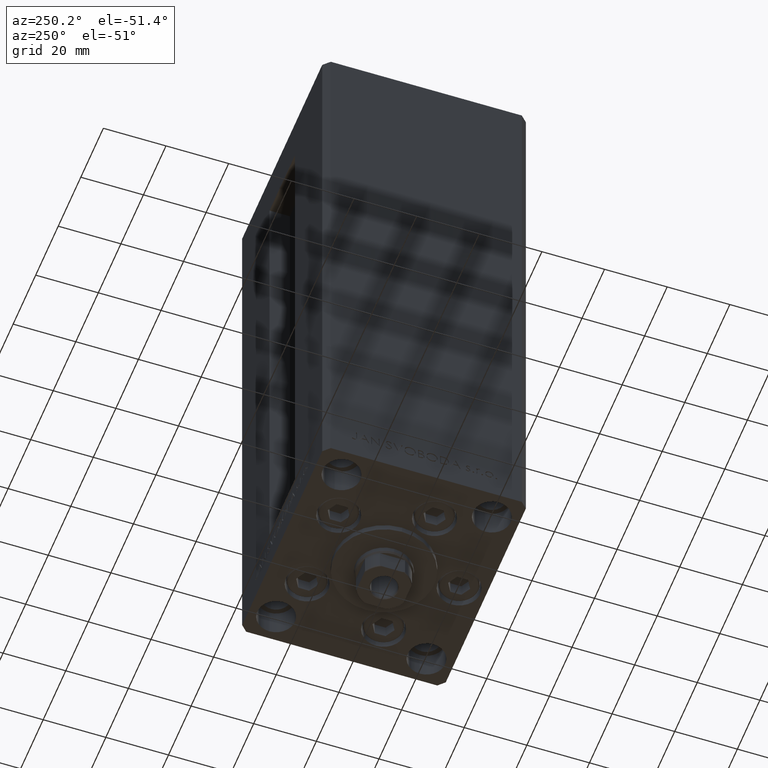
[diagram: clean part render]
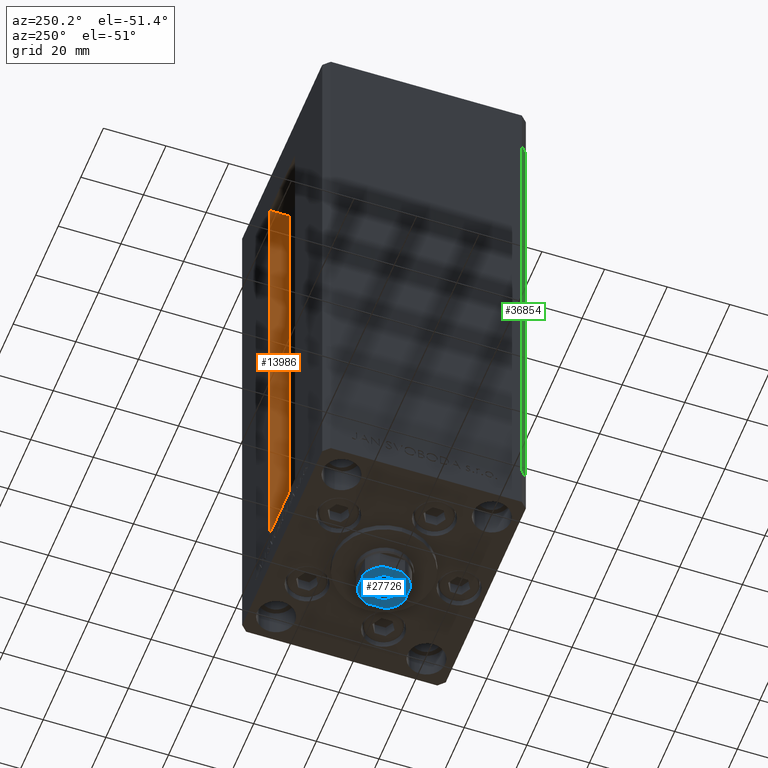
[diagram: same view with three faces highlighted in distinct colors, each labeled with its STEP entity id]
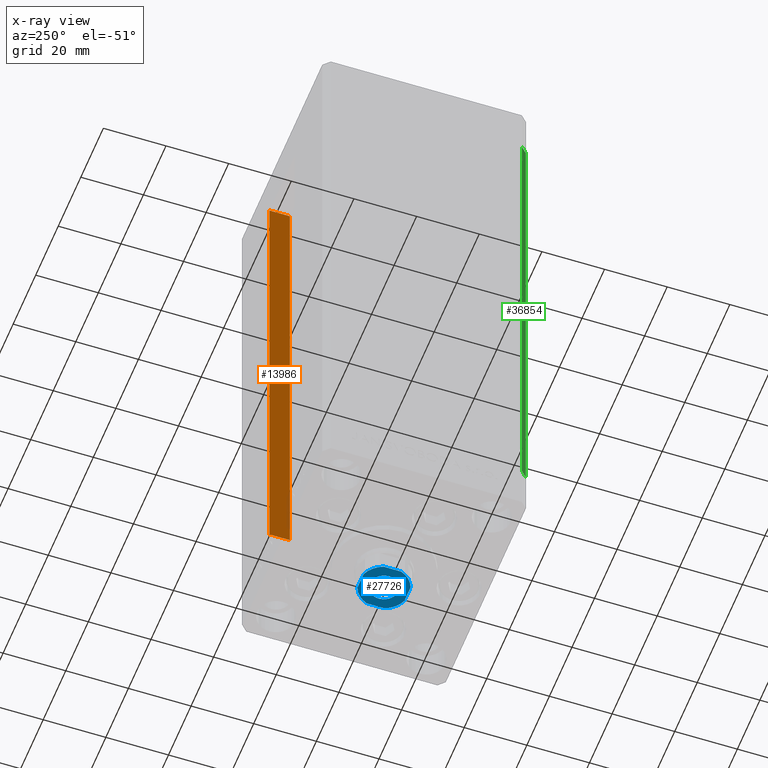
[diagram: x-ray of the same camera — body ghosted, the three highlighted faces saturated]
A machine part, auxiliary view with three faces highlighted in distinct colors.
The next image is the same camera in x-ray (body ghosted, the three faces saturated) — at least one of them is partly hidden behind the body in this view.
Their STEP definitions:

[orange] entity #13986 — the highlighted planar face has unit normal (1, 0, 0).
#1463 = CARTESIAN_POINT ( 'NONE',  ( 11.25000000000000178, 25.99999999999999289, 0.000000000000000000 ) ) ;
#2507 = ORIENTED_EDGE ( 'NONE', *, *, #34275, .F. ) ;
#3794 = AXIS2_PLACEMENT_3D ( 'NONE', #8987, #42883, #5533 ) ;
#4972 = CARTESIAN_POINT ( 'NONE',  ( 11.25000000000000178, 32.49999999999999289, 0.000000000000000000 ) ) ;
#5533 = DIRECTION ( 'NONE',  ( 0.000000000000000000, 0.000000000000000000, -1.000000000000000000 ) ) ;
#6016 = FACE_OUTER_BOUND ( 'NONE', #42939, .T. ) ;
#8684 = LINE ( 'NONE', #16348, #17759 ) ;
#8987 = CARTESIAN_POINT ( 'NONE',  ( 11.25000000000000178, 25.99999999999999289, 0.000000000000000000 ) ) ;
#9022 = VECTOR ( 'NONE', #26751, 1000.000000000000000 ) ;
#9454 = CARTESIAN_POINT ( 'NONE',  ( 11.24999999999999467, 32.49999999999999289, 156.0000000000000000 ) ) ;
#10745 = VECTOR ( 'NONE', #16542, 1000.000000000000000 ) ;
#12645 = CARTESIAN_POINT ( 'NONE',  ( 11.25000000000000178, 32.49999999999999289, 0.000000000000000000 ) ) ;
#12868 = DIRECTION ( 'NONE',  ( -0.000000000000000000, -1.000000000000000000, 0.000000000000000000 ) ) ;
#13986 = ADVANCED_FACE ( 'NONE', ( #6016 ), #20858, .F. ) ;
#16348 = CARTESIAN_POINT ( 'NONE',  ( 11.25000000000000178, 0.000000000000000000, 156.0000000000000000 ) ) ;
#16542 = DIRECTION ( 'NONE',  ( -0.000000000000000000, -0.000000000000000000, 1.000000000000000000 ) ) ;
#17143 = DIRECTION ( 'NONE',  ( 0.000000000000000000, 1.000000000000000000, 0.000000000000000000 ) ) ;
#17406 = ORIENTED_EDGE ( 'NONE', *, *, #43816, .T. ) ;
#17759 = VECTOR ( 'NONE', #12868, 1000.000000000000000 ) ;
#18144 = CARTESIAN_POINT ( 'NONE',  ( 11.25000000000000178, 25.99999999999999289, 0.000000000000000000 ) ) ;
#19273 = ORIENTED_EDGE ( 'NONE', *, *, #35111, .F. ) ;
#20251 = LINE ( 'NONE', #1463, #10745 ) ;
#20858 = PLANE ( 'NONE',  #3794 ) ;
#21662 = VERTEX_POINT ( 'NONE', #37900 ) ;
#22761 = EDGE_CURVE ( 'NONE', #38744, #41622, #44606, .T. ) ;
#23570 = VERTEX_POINT ( 'NONE', #9454 ) ;
#25819 = ORIENTED_EDGE ( 'NONE', *, *, #22761, .F. ) ;
#26751 = DIRECTION ( 'NONE',  ( -0.000000000000000000, -0.000000000000000000, 1.000000000000000000 ) ) ;
#30032 = CARTESIAN_POINT ( 'NONE',  ( 11.25000000000000178, 25.99999999999999289, 0.000000000000000000 ) ) ;
#34275 = EDGE_CURVE ( 'NONE', #41622, #23570, #38627, .T. ) ;
#35111 = EDGE_CURVE ( 'NONE', #23570, #21662, #8684, .T. ) ;
#37900 = CARTESIAN_POINT ( 'NONE',  ( 11.25000000000000178, 25.99999999999999289, 156.0000000000000000 ) ) ;
#38039 = VECTOR ( 'NONE', #17143, 1000.000000000000000 ) ;
#38627 = LINE ( 'NONE', #4972, #9022 ) ;
#38744 = VERTEX_POINT ( 'NONE', #30032 ) ;
#41622 = VERTEX_POINT ( 'NONE', #12645 ) ;
#42883 = DIRECTION ( 'NONE',  ( 1.000000000000000000, -0.000000000000000000, 0.000000000000000000 ) ) ;
#42939 = EDGE_LOOP ( 'NONE', ( #2507, #25819, #17406, #19273 ) ) ;
#43816 = EDGE_CURVE ( 'NONE', #38744, #21662, #20251, .T. ) ;
#44606 = LINE ( 'NONE', #18144, #38039 ) ;

[blue] entity #27726 — the highlighted planar face has unit normal (0, 0, -1).
#324 = ORIENTED_EDGE ( 'NONE', *, *, #45674, .T. ) ;
#379 = VERTEX_POINT ( 'NONE', #30710 ) ;
#713 = EDGE_CURVE ( 'NONE', #7906, #27357, #31229, .T. ) ;
#1664 = CARTESIAN_POINT ( 'NONE',  ( 0.000000000000000000, 0.000000000000000000, 168.0000000000000000 ) ) ;
#2004 = LINE ( 'NONE', #43312, #47153 ) ;
#2095 = CARTESIAN_POINT ( 'NONE',  ( 0.000000000000000000, 0.000000000000000000, 168.0000000000000000 ) ) ;
#2197 = ORIENTED_EDGE ( 'NONE', *, *, #713, .T. ) ;
#4750 = DIRECTION ( 'NONE',  ( -1.000000000000000000, -5.782411586589357392E-17, -0.000000000000000000 ) ) ;
#4983 = AXIS2_PLACEMENT_3D ( 'NONE', #39638, #43092, #39885 ) ;
#5204 = DIRECTION ( 'NONE',  ( 1.000000000000000000, 0.000000000000000000, 0.000000000000000000 ) ) ;
#5930 = CARTESIAN_POINT ( 'NONE',  ( 7.500000000000000888, 2.783882181415007206, 168.0000000000000000 ) ) ;
#7815 = CIRCLE ( 'NONE', #22031, 4.550000000000012257 ) ;
#7906 = VERTEX_POINT ( 'NONE', #14012 ) ;
#8404 = ORIENTED_EDGE ( 'NONE', *, *, #43147, .T. ) ;
#8625 = CARTESIAN_POINT ( 'NONE',  ( -7.499999999999998224, 7.499999999999999112, 168.0000000000000000 ) ) ;
#9267 = CARTESIAN_POINT ( 'NONE',  ( -7.499999999999998224, 2.783882181415015644, 168.0000000000000000 ) ) ;
#9825 = CARTESIAN_POINT ( 'NONE',  ( 4.550000000000012257, 0.000000000000000000, 168.0000000000000000 ) ) ;
#10028 = EDGE_CURVE ( 'NONE', #21853, #15069, #29854, .T. ) ;
#11124 = CARTESIAN_POINT ( 'NONE',  ( -7.499999999999998224, -2.783882181415016088, 168.0000000000000000 ) ) ;
#11646 = DIRECTION ( 'NONE',  ( -0.000000000000000000, 0.000000000000000000, 1.000000000000000000 ) ) ;
#11683 = AXIS2_PLACEMENT_3D ( 'NONE', #1664, #16745, #13270 ) ;
#12481 = DIRECTION ( 'NONE',  ( 0.000000000000000000, -0.000000000000000000, -1.000000000000000000 ) ) ;
#12727 = VECTOR ( 'NONE', #36432, 1000.000000000000000 ) ;
#12824 = CARTESIAN_POINT ( 'NONE',  ( 7.500000000000001776, 7.500000000000000000, 168.0000000000000000 ) ) ;
#13206 = DIRECTION ( 'NONE',  ( 1.000000000000000000, 0.000000000000000000, 0.000000000000000000 ) ) ;
#13270 = DIRECTION ( 'NONE',  ( 1.000000000000000000, 0.000000000000000000, 0.000000000000000000 ) ) ;
#13366 = EDGE_CURVE ( 'NONE', #28969, #34473, #17276, .T. ) ;
#13404 = CARTESIAN_POINT ( 'NONE',  ( -7.499999999999997335, -7.500000000000000888, 168.0000000000000000 ) ) ;
#13981 = ORIENTED_EDGE ( 'NONE', *, *, #45842, .T. ) ;
#14012 = CARTESIAN_POINT ( 'NONE',  ( -2.783882181415013868, 7.499999999999999112, 168.0000000000000000 ) ) ;
#14053 = CARTESIAN_POINT ( 'NONE',  ( 0.000000000000000000, 0.000000000000000000, 168.0000000000000000 ) ) ;
#15069 = VERTEX_POINT ( 'NONE', #17543 ) ;
#15443 = EDGE_CURVE ( 'NONE', #39572, #379, #33047, .T. ) ;
#15737 = EDGE_CURVE ( 'NONE', #33720, #36779, #7815, .T. ) ;
#16745 = DIRECTION ( 'NONE',  ( -0.000000000000000000, 0.000000000000000000, 1.000000000000000000 ) ) ;
#17276 = CIRCLE ( 'NONE', #21248, 8.000000000000000000 ) ;
#17543 = CARTESIAN_POINT ( 'NONE',  ( -2.783882181415010315, -7.500000000000000888, 168.0000000000000000 ) ) ;
#17763 = DIRECTION ( 'NONE',  ( -0.000000000000000000, 0.000000000000000000, 1.000000000000000000 ) ) ;
#18214 = CARTESIAN_POINT ( 'NONE',  ( 0.000000000000000000, 0.000000000000000000, 168.0000000000000000 ) ) ;
#20261 = LINE ( 'NONE', #12824, #28938 ) ;
#21001 = DIRECTION ( 'NONE',  ( 1.156482317317871478E-16, 1.000000000000000000, -0.000000000000000000 ) ) ;
#21248 = AXIS2_PLACEMENT_3D ( 'NONE', #14053, #17763, #28411 ) ;
#21853 = VERTEX_POINT ( 'NONE', #11124 ) ;
#22031 = AXIS2_PLACEMENT_3D ( 'NONE', #2095, #12481, #13206 ) ;
#22063 = ORIENTED_EDGE ( 'NONE', *, *, #10028, .T. ) ;
#22176 = DIRECTION ( 'NONE',  ( -0.000000000000000000, 0.000000000000000000, 1.000000000000000000 ) ) ;
#23663 = EDGE_CURVE ( 'NONE', #15069, #39572, #47320, .T. ) ;
#23814 = PLANE ( 'NONE',  #4983 ) ;
#24533 = ORIENTED_EDGE ( 'NONE', *, *, #15443, .T. ) ;
#25059 = CARTESIAN_POINT ( 'NONE',  ( 0.000000000000000000, 0.000000000000000000, 168.0000000000000000 ) ) ;
#25266 = ORIENTED_EDGE ( 'NONE', *, *, #15737, .T. ) ;
#25795 = AXIS2_PLACEMENT_3D ( 'NONE', #25059, #36699, #41137 ) ;
#27357 = VERTEX_POINT ( 'NONE', #9267 ) ;
#27607 = CARTESIAN_POINT ( 'NONE',  ( 2.783882181415008539, -7.500000000000000888, 168.0000000000000000 ) ) ;
#27726 = ADVANCED_FACE ( 'NONE', ( #32224, #35197 ), #23814, .T. ) ;
#28408 = LINE ( 'NONE', #8625, #35989 ) ;
#28411 = DIRECTION ( 'NONE',  ( 1.000000000000000000, 0.000000000000000000, 0.000000000000000000 ) ) ;
#28938 = VECTOR ( 'NONE', #21001, 1000.000000000000000 ) ;
#28969 = VERTEX_POINT ( 'NONE', #5930 ) ;
#29854 = CIRCLE ( 'NONE', #41711, 8.000000000000000000 ) ;
#30623 = ORIENTED_EDGE ( 'NONE', *, *, #44517, .T. ) ;
#30710 = CARTESIAN_POINT ( 'NONE',  ( 7.500000000000000888, -2.783882181415009427, 168.0000000000000000 ) ) ;
#31229 = CIRCLE ( 'NONE', #45462, 8.000000000000000000 ) ;
#31396 = DIRECTION ( 'NONE',  ( 5.782411586589357392E-17, -1.000000000000000000, 0.000000000000000000 ) ) ;
#32224 = FACE_BOUND ( 'NONE', #33259, .T. ) ;
#32385 = EDGE_LOOP ( 'NONE', ( #8404, #22063, #37059, #24533, #30623, #39188, #13981, #2197 ) ) ;
#33047 = CIRCLE ( 'NONE', #11683, 8.000000000000000000 ) ;
#33259 = EDGE_LOOP ( 'NONE', ( #25266, #324 ) ) ;
#33720 = VERTEX_POINT ( 'NONE', #9825 ) ;
#34473 = VERTEX_POINT ( 'NONE', #44302 ) ;
#35197 = FACE_OUTER_BOUND ( 'NONE', #32385, .T. ) ;
#35989 = VECTOR ( 'NONE', #31396, 1000.000000000000000 ) ;
#36278 = CARTESIAN_POINT ( 'NONE',  ( -4.550000000000012257, 5.572142936120472118E-16, 168.0000000000000000 ) ) ;
#36432 = DIRECTION ( 'NONE',  ( 1.000000000000000000, 5.782411586589358625E-17, 0.000000000000000000 ) ) ;
#36699 = DIRECTION ( 'NONE',  ( 0.000000000000000000, -0.000000000000000000, -1.000000000000000000 ) ) ;
#36779 = VERTEX_POINT ( 'NONE', #36278 ) ;
#37059 = ORIENTED_EDGE ( 'NONE', *, *, #23663, .T. ) ;
#39188 = ORIENTED_EDGE ( 'NONE', *, *, #13366, .T. ) ;
#39572 = VERTEX_POINT ( 'NONE', #27607 ) ;
#39638 = CARTESIAN_POINT ( 'NONE',  ( 0.000000000000000000, 0.000000000000000000, 168.0000000000000000 ) ) ;
#39885 = DIRECTION ( 'NONE',  ( 1.000000000000000000, 0.000000000000000000, 0.000000000000000000 ) ) ;
#41137 = DIRECTION ( 'NONE',  ( 1.000000000000000000, 0.000000000000000000, 0.000000000000000000 ) ) ;
#41443 = DIRECTION ( 'NONE',  ( 1.000000000000000000, 0.000000000000000000, 0.000000000000000000 ) ) ;
#41711 = AXIS2_PLACEMENT_3D ( 'NONE', #42078, #11646, #5204 ) ;
#42078 = CARTESIAN_POINT ( 'NONE',  ( 0.000000000000000000, 0.000000000000000000, 168.0000000000000000 ) ) ;
#43092 = DIRECTION ( 'NONE',  ( -0.000000000000000000, 0.000000000000000000, 1.000000000000000000 ) ) ;
#43147 = EDGE_CURVE ( 'NONE', #27357, #21853, #28408, .T. ) ;
#43312 = CARTESIAN_POINT ( 'NONE',  ( -7.499999999999998224, 7.499999999999999112, 168.0000000000000000 ) ) ;
#44302 = CARTESIAN_POINT ( 'NONE',  ( 2.783882181415012980, 7.500000000000000000, 168.0000000000000000 ) ) ;
#44517 = EDGE_CURVE ( 'NONE', #379, #28969, #20261, .T. ) ;
#45462 = AXIS2_PLACEMENT_3D ( 'NONE', #18214, #22176, #41443 ) ;
#45674 = EDGE_CURVE ( 'NONE', #36779, #33720, #47113, .T. ) ;
#45842 = EDGE_CURVE ( 'NONE', #34473, #7906, #2004, .T. ) ;
#47113 = CIRCLE ( 'NONE', #25795, 4.550000000000012257 ) ;
#47153 = VECTOR ( 'NONE', #4750, 1000.000000000000000 ) ;
#47320 = LINE ( 'NONE', #13404, #12727 ) ;

[green] entity #36854 — the highlighted planar face has unit normal (0.7071, 0.7071, 0).
#1131 = LINE ( 'NONE', #42926, #40658 ) ;
#3593 = DIRECTION ( 'NONE',  ( -0.7071067811865474617, 0.7071067811865474617, 0.000000000000000000 ) ) ;
#3760 = LINE ( 'NONE', #35872, #41253 ) ;
#4717 = ORIENTED_EDGE ( 'NONE', *, *, #40142, .F. ) ;
#5835 = LINE ( 'NONE', #16482, #29723 ) ;
#8815 = DIRECTION ( 'NONE',  ( -0.000000000000000000, -0.000000000000000000, -1.000000000000000000 ) ) ;
#11021 = FACE_OUTER_BOUND ( 'NONE', #34082, .T. ) ;
#11909 = DIRECTION ( 'NONE',  ( 0.7071067811865474617, -0.7071067811865474617, 0.000000000000000000 ) ) ;
#13866 = VERTEX_POINT ( 'NONE', #18197 ) ;
#14762 = VECTOR ( 'NONE', #11909, 1000.000000000000114 ) ;
#16192 = AXIS2_PLACEMENT_3D ( 'NONE', #26105, #41206, #3593 ) ;
#16482 = CARTESIAN_POINT ( 'NONE',  ( -35.49999999999999289, -32.50000000000000000, 156.0000000000000000 ) ) ;
#18197 = CARTESIAN_POINT ( 'NONE',  ( -35.49999999999999289, -32.50000000000000000, 0.000000000000000000 ) ) ;
#18681 = PLANE ( 'NONE',  #16192 ) ;
#22919 = DIRECTION ( 'NONE',  ( 0.7071067811865474617, -0.7071067811865474617, 0.000000000000000000 ) ) ;
#25513 = CARTESIAN_POINT ( 'NONE',  ( -37.49999999999999289, -30.50000000000000000, 0.000000000000000000 ) ) ;
#26105 = CARTESIAN_POINT ( 'NONE',  ( -37.49999999999999289, -30.50000000000000000, 156.0000000000000000 ) ) ;
#28871 = EDGE_CURVE ( 'NONE', #40020, #47907, #3760, .T. ) ;
#29723 = VECTOR ( 'NONE', #8815, 1000.000000000000000 ) ;
#30484 = LINE ( 'NONE', #34449, #14762 ) ;
#30732 = CARTESIAN_POINT ( 'NONE',  ( -35.49999999999999289, -32.50000000000000000, 156.0000000000000000 ) ) ;
#33955 = EDGE_CURVE ( 'NONE', #47907, #13866, #1131, .T. ) ;
#34038 = ORIENTED_EDGE ( 'NONE', *, *, #33955, .T. ) ;
#34082 = EDGE_LOOP ( 'NONE', ( #34038, #35576, #4717, #47727 ) ) ;
#34449 = CARTESIAN_POINT ( 'NONE',  ( -37.49999999999999289, -30.50000000000000000, 156.0000000000000000 ) ) ;
#34700 = CARTESIAN_POINT ( 'NONE',  ( -37.49999999999999289, -30.50000000000000000, 156.0000000000000000 ) ) ;
#35576 = ORIENTED_EDGE ( 'NONE', *, *, #43949, .F. ) ;
#35872 = CARTESIAN_POINT ( 'NONE',  ( -37.49999999999999289, -30.50000000000000000, 156.0000000000000000 ) ) ;
#36854 = ADVANCED_FACE ( 'NONE', ( #11021 ), #18681, .F. ) ;
#40020 = VERTEX_POINT ( 'NONE', #34700 ) ;
#40142 = EDGE_CURVE ( 'NONE', #40020, #43518, #30484, .T. ) ;
#40658 = VECTOR ( 'NONE', #22919, 1000.000000000000114 ) ;
#41206 = DIRECTION ( 'NONE',  ( 0.7071067811865475727, 0.7071067811865475727, -0.000000000000000000 ) ) ;
#41253 = VECTOR ( 'NONE', #47009, 1000.000000000000000 ) ;
#42926 = CARTESIAN_POINT ( 'NONE',  ( -37.49999999999999289, -30.50000000000000000, 0.000000000000000000 ) ) ;
#43518 = VERTEX_POINT ( 'NONE', #30732 ) ;
#43949 = EDGE_CURVE ( 'NONE', #43518, #13866, #5835, .T. ) ;
#47009 = DIRECTION ( 'NONE',  ( -0.000000000000000000, -0.000000000000000000, -1.000000000000000000 ) ) ;
#47727 = ORIENTED_EDGE ( 'NONE', *, *, #28871, .T. ) ;
#47907 = VERTEX_POINT ( 'NONE', #25513 ) ;